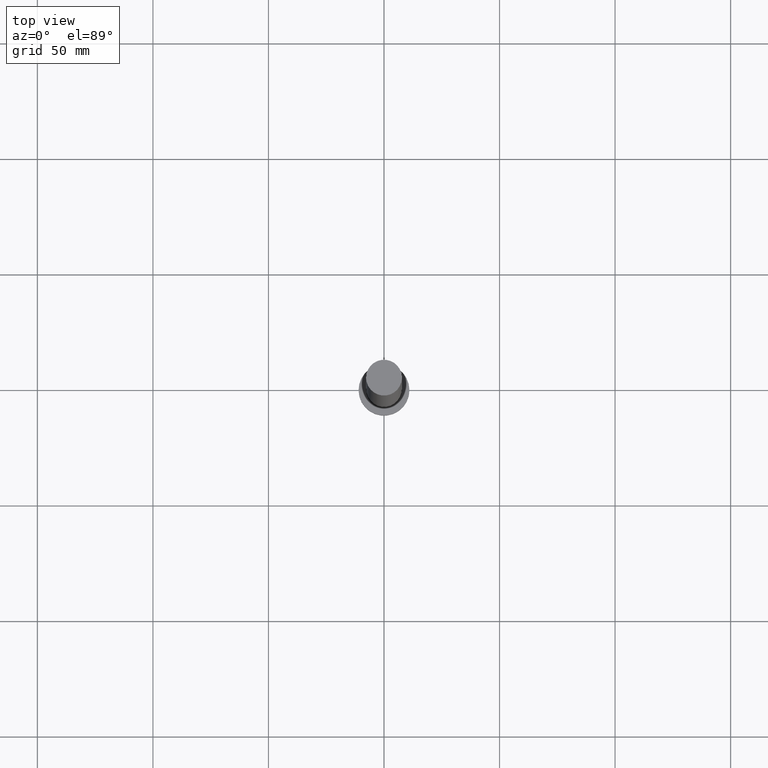
[diagram: clean part render]
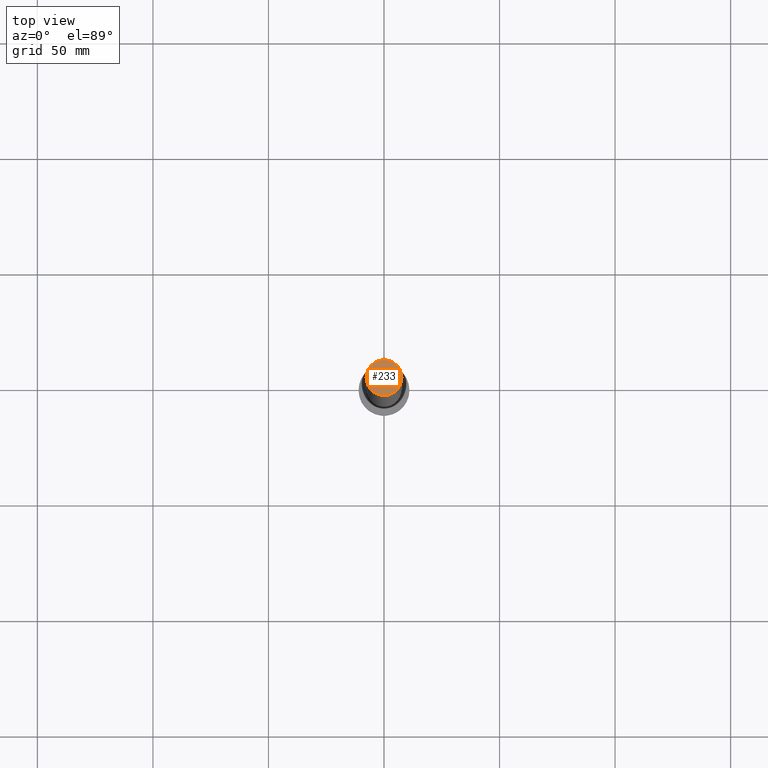
[diagram: same view with one face highlighted and labeled with its STEP entity id]
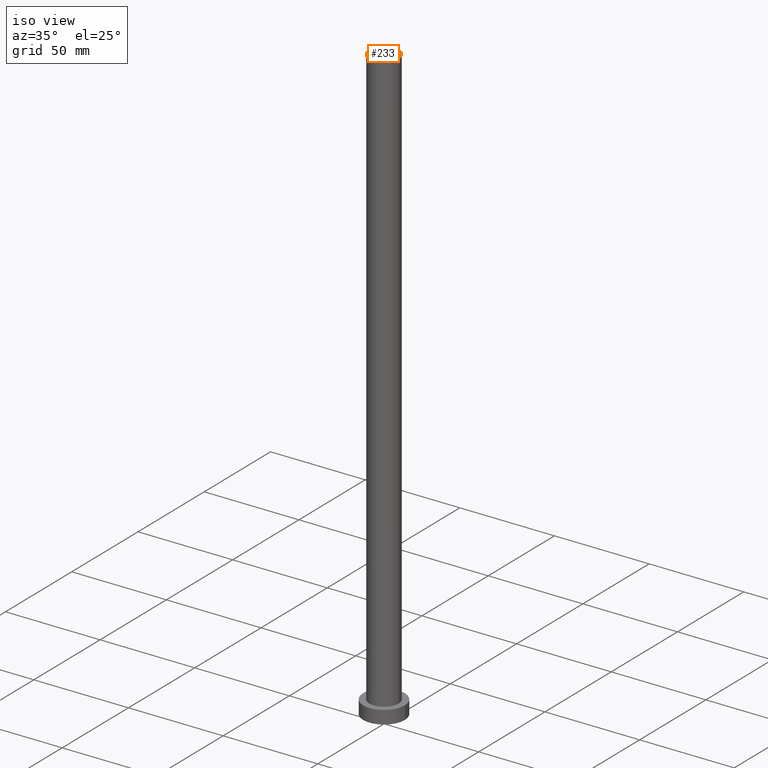
[diagram: same view with one face highlighted and labeled with its STEP entity id]
A machine part, top view. The second image highlights one B-rep face of the part: STEP entity #233.
A second angle (iso view) of the same face is appended — the face is thin or edge-on in the first view.
In plain terms, the highlighted planar face has unit normal (0, 0, 1).
Its self-contained STEP definition (entity closure, byte-faithful):
#4 = CIRCLE ( 'NONE', #31, 7.750000000000000000 ) ;
#11 = EDGE_LOOP ( 'NONE', ( #176, #244 ) ) ;
#21 = CARTESIAN_POINT ( 'NONE',  ( 0.000000000000000000, 0.000000000000000000, 315.0000000000000000 ) ) ;
#31 = AXIS2_PLACEMENT_3D ( 'NONE', #21, #102, #215 ) ;
#35 = CIRCLE ( 'NONE', #250, 7.750000000000000000 ) ;
#42 = CARTESIAN_POINT ( 'NONE',  ( 0.000000000000000000, 0.000000000000000000, 315.0000000000000000 ) ) ;
#76 = CARTESIAN_POINT ( 'NONE',  ( 7.750000000000000000, 9.491012693391987787E-16, 315.0000000000000000 ) ) ;
#94 = VERTEX_POINT ( 'NONE', #100 ) ;
#100 = CARTESIAN_POINT ( 'NONE',  ( -7.750000000000000000, 0.000000000000000000, 315.0000000000000000 ) ) ;
#102 = DIRECTION ( 'NONE',  ( 0.000000000000000000, 0.000000000000000000, 1.000000000000000000 ) ) ;
#112 = AXIS2_PLACEMENT_3D ( 'NONE', #42, #142, #200 ) ;
#121 = DIRECTION ( 'NONE',  ( 0.000000000000000000, 0.000000000000000000, 1.000000000000000000 ) ) ;
#139 = VERTEX_POINT ( 'NONE', #76 ) ;
#142 = DIRECTION ( 'NONE',  ( 0.000000000000000000, 0.000000000000000000, 1.000000000000000000 ) ) ;
#147 = FACE_OUTER_BOUND ( 'NONE', #11, .T. ) ;
#160 = DIRECTION ( 'NONE',  ( 1.000000000000000000, 0.000000000000000000, 0.000000000000000000 ) ) ;
#176 = ORIENTED_EDGE ( 'NONE', *, *, #217, .T. ) ;
#200 = DIRECTION ( 'NONE',  ( 1.000000000000000000, 0.000000000000000000, -0.000000000000000000 ) ) ;
#215 = DIRECTION ( 'NONE',  ( 1.000000000000000000, 0.000000000000000000, 0.000000000000000000 ) ) ;
#217 = EDGE_CURVE ( 'NONE', #94, #139, #35, .T. ) ;
#226 = PLANE ( 'NONE',  #112 ) ;
#233 = ADVANCED_FACE ( 'NONE', ( #147 ), #226, .T. ) ;
#242 = EDGE_CURVE ( 'NONE', #139, #94, #4, .T. ) ;
#244 = ORIENTED_EDGE ( 'NONE', *, *, #242, .T. ) ;
#250 = AXIS2_PLACEMENT_3D ( 'NONE', #254, #121, #160 ) ;
#254 = CARTESIAN_POINT ( 'NONE',  ( 0.000000000000000000, 0.000000000000000000, 315.0000000000000000 ) ) ;